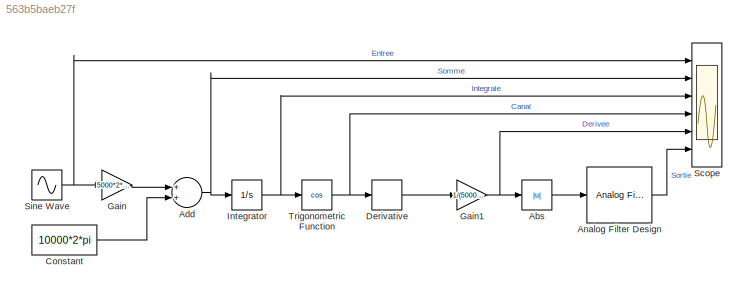
MODEL slx_563b5baeb27f
KIND model
CONFIG AbsTol = auto
CONFIG FixedStep = 1/100000
CONFIG MaxStep = auto
CONFIG MinStep = auto
CONFIG RelTol = 1e-3
CONFIG SampleTimeConstraint = Unconstrained
CONFIG Solver = ode3
CONFIG SolverMode = Auto
CONFIG SolverName = ode3
CONFIG StartTime = 0.0
CONFIG StopTime = 0.025
BLOCK [Abs] Abs
  SaturateOnIntegerOverflow = off
BLOCK [Sum] Add
  InputSameDT = off
  OutDataTypeStr = Inherit: Inherit via internal rule
  Ports = [2, 1]
  SaturateOnIntegerOverflow = off
BLOCK [Reference] Analog Filter Design  REF=dsparch4/Analog
Filter Design
  Ports = [1, 1]
  SourceBlock = dsparch4/Analog\nFilter Design
  SourceType = Analog Filter Design
BLOCK [Constant] Constant
  Value = 10000*2*pi
BLOCK [Derivative] Derivative
BLOCK [Gain] Gain
  Gain = 5000*2*pi
  OutDataTypeStr = Inherit: Inherit via internal rule
  ParamDataTypeStr = Inherit: Inherit via internal rule
  SaturateOnIntegerOverflow = off
BLOCK [Gain] Gain1
  Gain = 1/(5000*2*pi)
  OutDataTypeStr = Inherit: Inherit via internal rule
  ParamDataTypeStr = Inherit: Inherit via internal rule
  SaturateOnIntegerOverflow = off
BLOCK [Integrator] Integrator
  Ports = [1, 1]
BLOCK [Scope] Scope
  NumInputPorts = 6
  Ports = [6]
  ScopeSpecificationString = Simulink.scopes.TimeScopeBlockCfg('CurrentConfiguration', extmgr.ConfigurationSet(extmgr.Configuration('Core','General UI',true),extmgr.Configuration('Core','Source UI',true),extmgr.Configuration('Sources','WiredSimulink',true),extmgr.Configuration('Visuals','Time Domain',true,'SerializedDisplays',{struct('MinYLimReal','-1','MaxYLimReal','1','YLabelReal','','MinYLimMag','   0.00000','MaxYLimMag','...<+4751ch>
BLOCK [Sin] Sine Wave
  Frequency = 200*2*pi
  Ports = [0, 1]
  SampleTime = 0
BLOCK [Trigonometry] Trigonometric Function
  Operator = cos
  Ports = [1, 1]
LINE Abs:1 -> Analog Filter Design:1
NET Add:1 -> Integrator:1, Scope:2
LINE Analog Filter Design:1 -> Scope:6
LINE Constant:1 -> Add:2
LINE Derivative:1 -> Gain1:1
NET Gain1:1 -> Abs:1, Scope:5
LINE Gain:1 -> Add:1
NET Integrator:1 -> Scope:3, Trigonometric Function:1
NET Sine Wave:1 -> Gain:1, Scope:1
NET Trigonometric Function:1 -> Derivative:1, Scope:4
note: NET lines group one-source signal fan-out (src -> all destinations, sorted); 1:1 wires keep LINE
